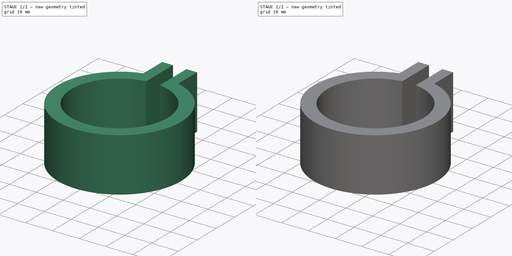
[diagram: build sequence overview — one tinted view per stage of 2, left to right]
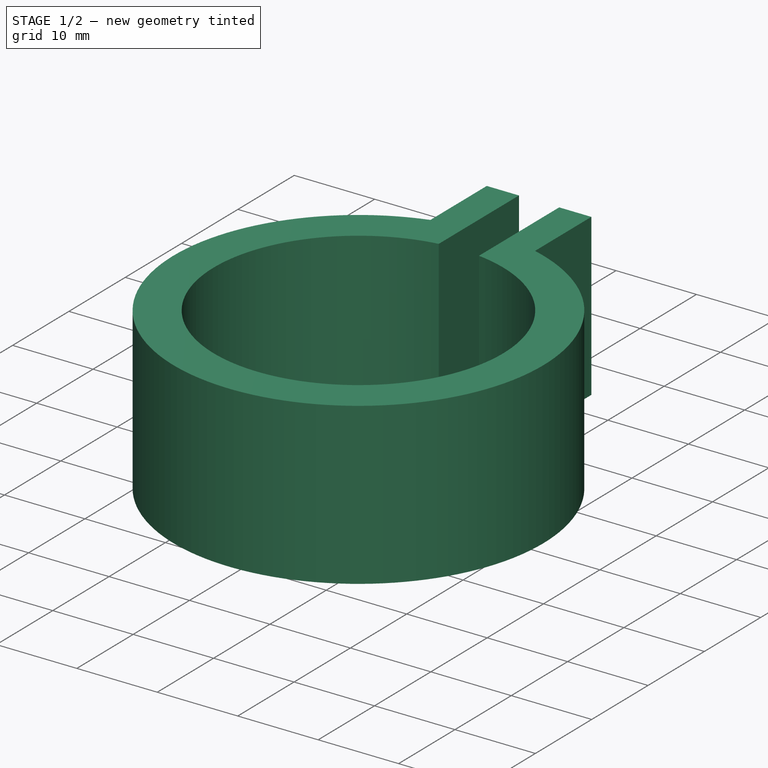
[diagram: stage 1 of 2 — iso view after this stage's code; geometry added in this stage tinted green]
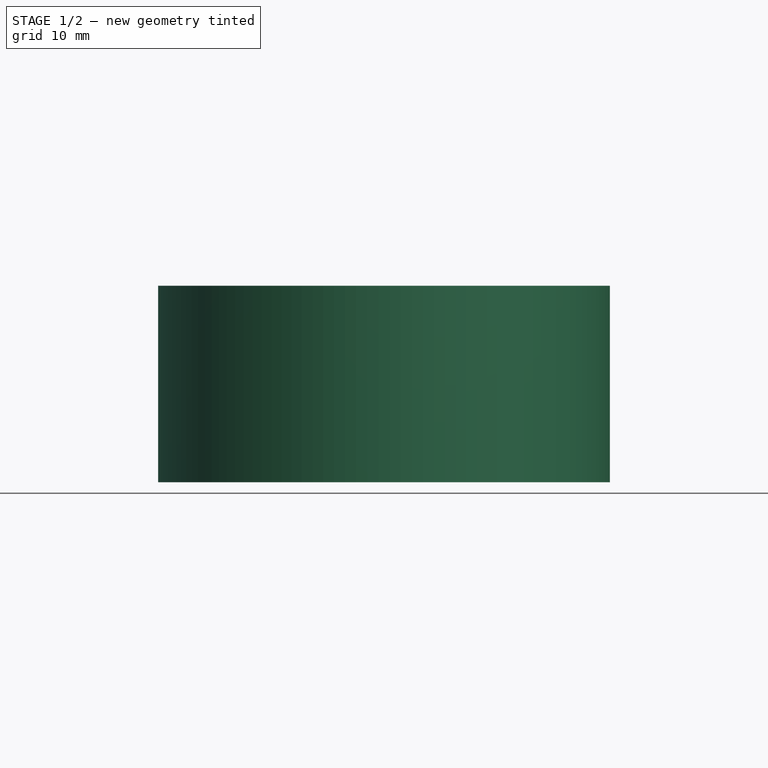
[diagram: stage 1 of 2 — front view after this stage's code; geometry added in this stage tinted green]
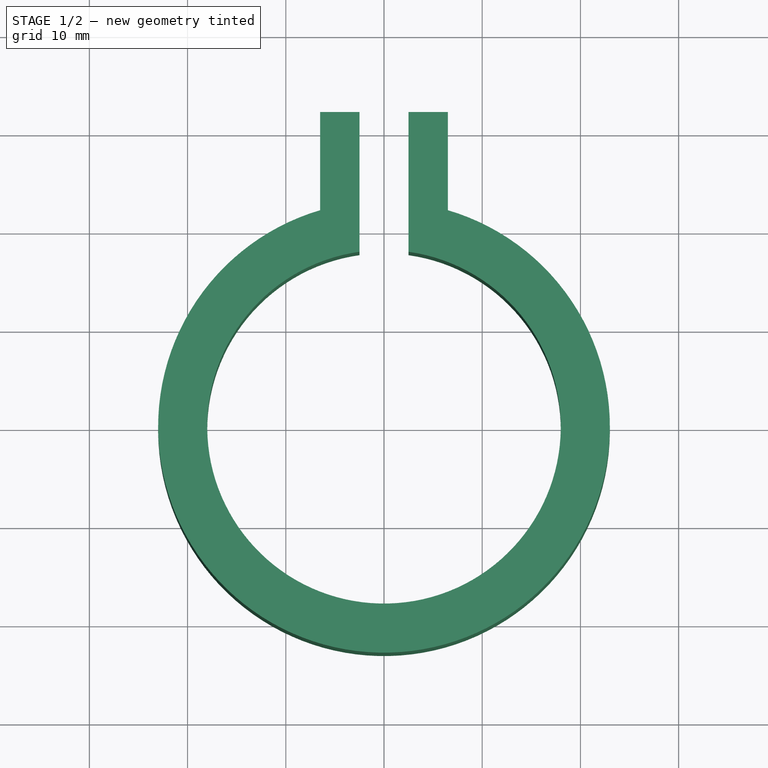
[diagram: stage 1 of 2 — top view after this stage's code; geometry added in this stage tinted green]
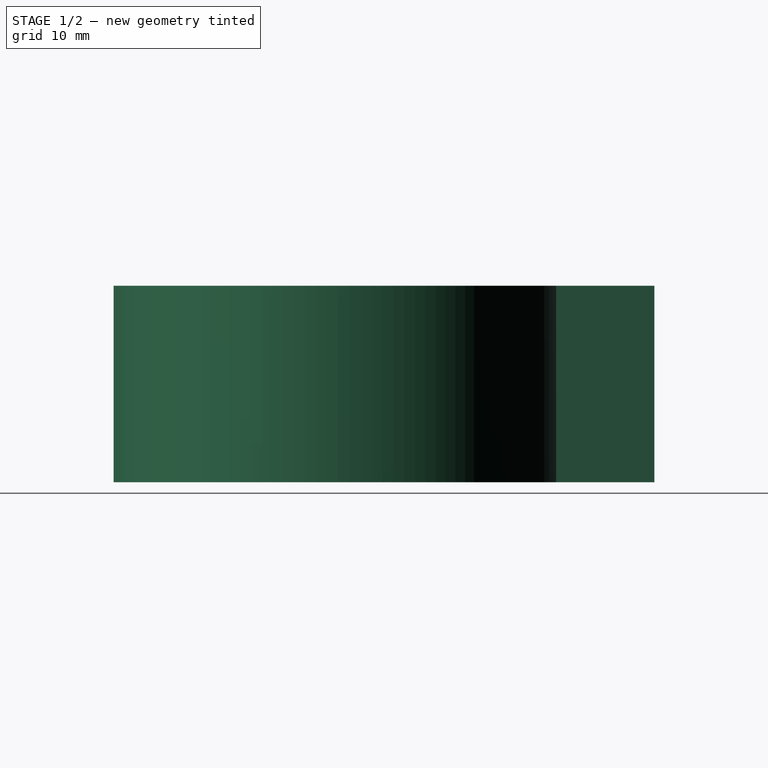
[diagram: stage 1 of 2 — right view after this stage's code; geometry added in this stage tinted green]
FCSTD DOCUMENT  (FreeCAD 0.16R6712 (Git))
Label: Presilha Sensor capacitivo
License: All rights reserved
LicenseURL: http://en.wikipedia.org/wiki/All_rights_reserved
objects: Sketcher::SketchObject×2, PartDesign::Pad×1, PartDesign::Pocket×1
note: 6 computed .brp shape members not serialized (recipe doc carries the construction recipe); baked Part::Feature solids carry a one-line shape summary decoded from their .brp

FEATURE [Sketcher::SketchObject] Sketch
  sketch-geometry (8):
    g0: ArcOfCircle CenterX=0 CenterY=0 CenterZ=0 NormalX=0 NormalY=0 NormalZ=1 Radius=18 StartAngle=1.71014 EndAngle=7.71464
    g1: ArcOfCircle CenterX=0 CenterY=0 CenterZ=0 NormalX=0 NormalY=0 NormalZ=1 Radius=23 StartAngle=1.85731 EndAngle=7.56747
    g2: LineSegment StartX=-6.5 StartY=22.0624 StartZ=0 EndX=-6.5 EndY=32.0624 EndZ=0
    g3: LineSegment StartX=-6.5 StartY=32.0624 StartZ=0 EndX=-2.5 EndY=32.0624 EndZ=0
    g4: LineSegment StartX=-2.5 StartY=32.0624 StartZ=0 EndX=-2.5 EndY=17.8255 EndZ=0
    g5: LineSegment StartX=6.5 StartY=22.0624 StartZ=0 EndX=6.5 EndY=32.0624 EndZ=0
    g6: LineSegment StartX=6.5 StartY=32.0624 StartZ=0 EndX=2.5 EndY=32.0624 EndZ=0
    g7: LineSegment StartX=2.5 StartY=32.0624 StartZ=0 EndX=2.5 EndY=17.8255 EndZ=0
  constraints (23):
    c: Coincident(g-1,g0)
    c: Radius(g0) = 18
    c: Coincident(g0,g1)
    c: Coincident(g2,g3)
    c: Coincident(g3,g4)
    c: Horizontal(g3)
    c: Vertical(g2)
    c: Vertical(g4)
    c: Coincident(g5,g6)
    c: Coincident(g6,g7)
    c: Horizontal(g6)
    c: Vertical(g5)
    c: Vertical(g7)
    c: Equal(g3,g6)
    c: Symmetric(g3,g6,g-2)
    c: Radius(g1) = 23
    c: DistanceX(g0,g0) = 5
    c: DistanceX(g6,g6) = 4
    c: Coincident(g2,g1)
    c: Coincident(g5,g1)
    c: DistanceY(g5,g5) = 10
    c: Coincident(g0,g4)
    c: Coincident(g0,g7)
FEATURE [PartDesign::Pad] Pad
  Length = 20
  Length2 = 100
  Sketch = -> Sketch
  Type = 0
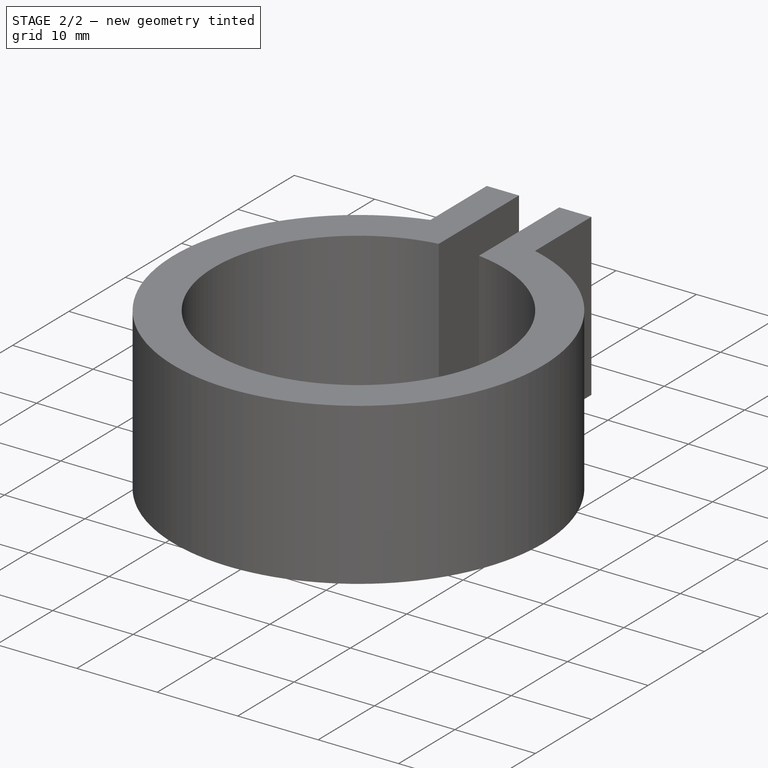
[diagram: stage 2 of 2 — iso view after this stage's code; geometry added in this stage tinted green]
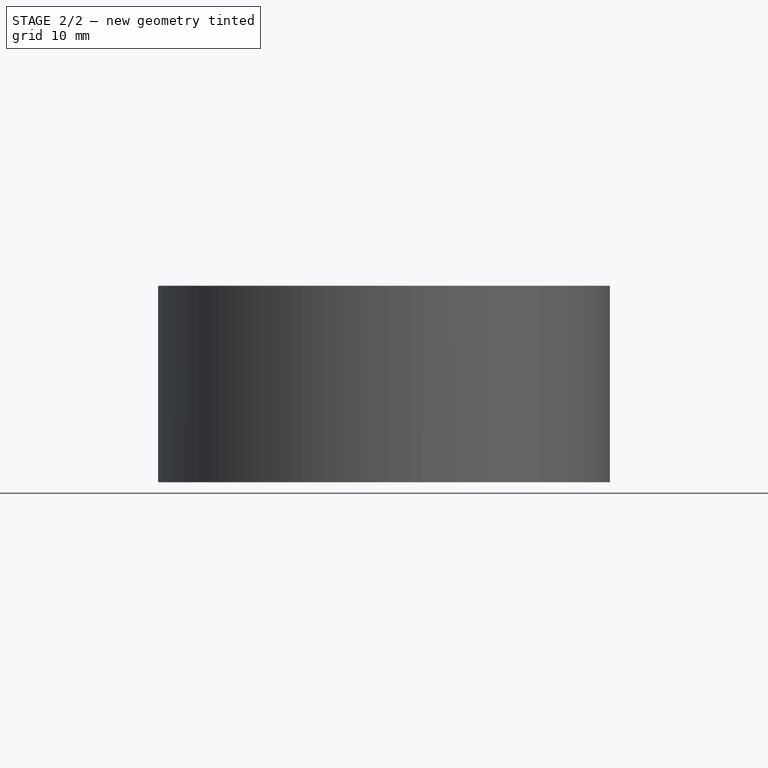
[diagram: stage 2 of 2 — front view after this stage's code; geometry added in this stage tinted green]
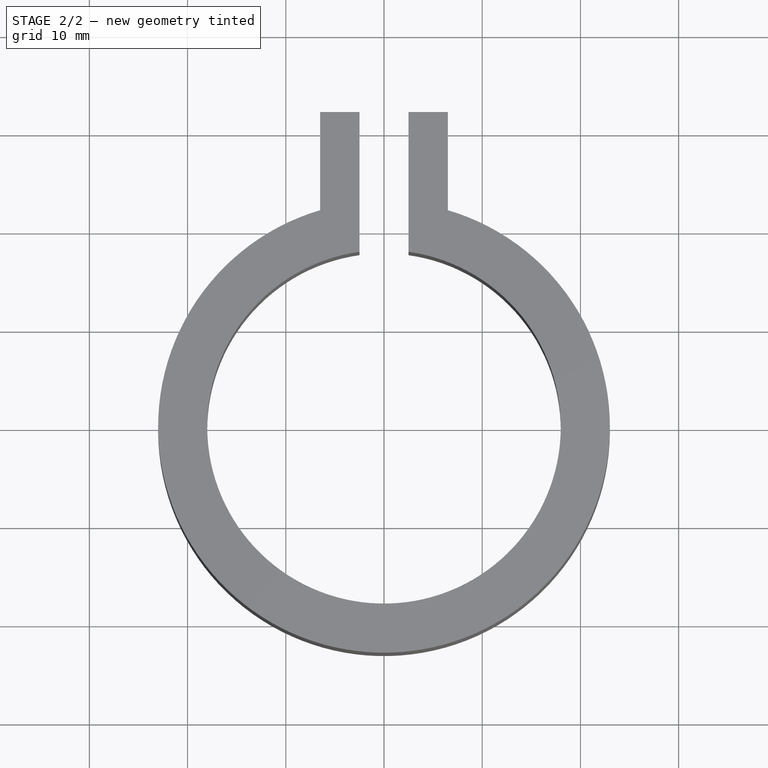
[diagram: stage 2 of 2 — top view after this stage's code; geometry added in this stage tinted green]
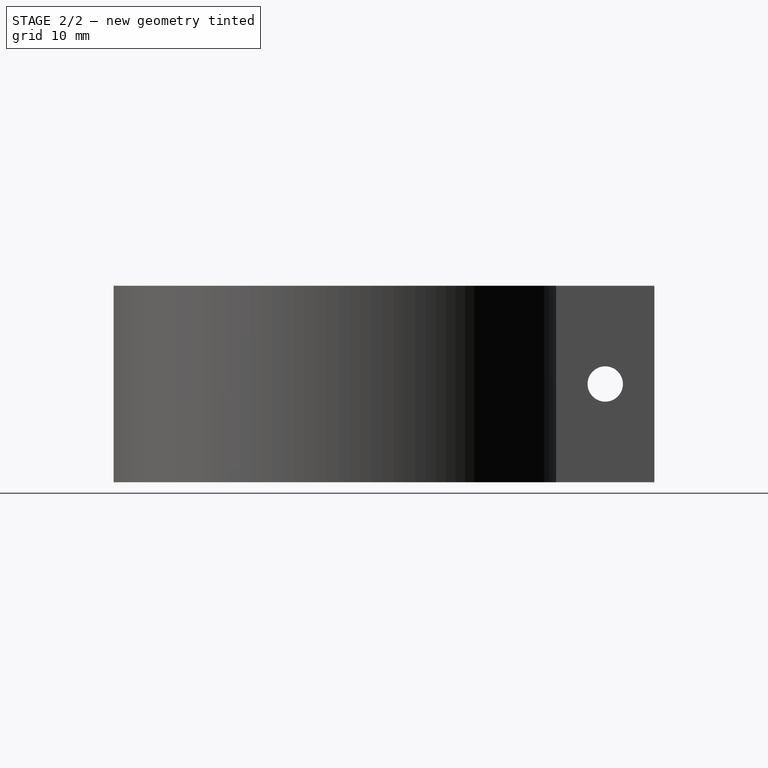
[diagram: stage 2 of 2 — right view after this stage's code; geometry added in this stage tinted green]
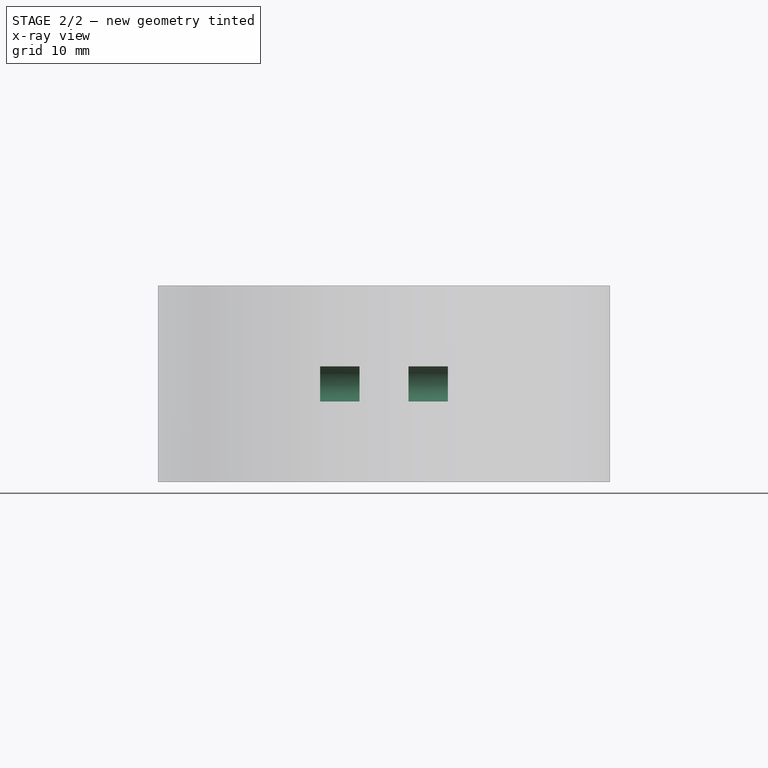
[diagram: stage 2 of 2 — x-ray composite at the front view; earlier geometry ghosted, this stage's added geometry solid]
FEATURE [Sketcher::SketchObject] Sketch001
  ExternalGeometry = -> [Pad]
  Placement = pos=(6.5,0,0) rot=(0.57735,0.57735,0.57735;2.0944rad)
  Support = -> Pad [Face7]
  sketch-geometry (1):
    g0: Circle CenterX=27.0624 CenterY=10 CenterZ=0 NormalX=0 NormalY=0 NormalZ=1 Radius=1.8
  constraints (2):
    c: Radius(g0) = 1.8
    c: Symmetric(g-3,g-4,g0)
FEATURE [PartDesign::Pocket] Pocket
  Length = 5
  Sketch = -> Sketch001
  Type = 1
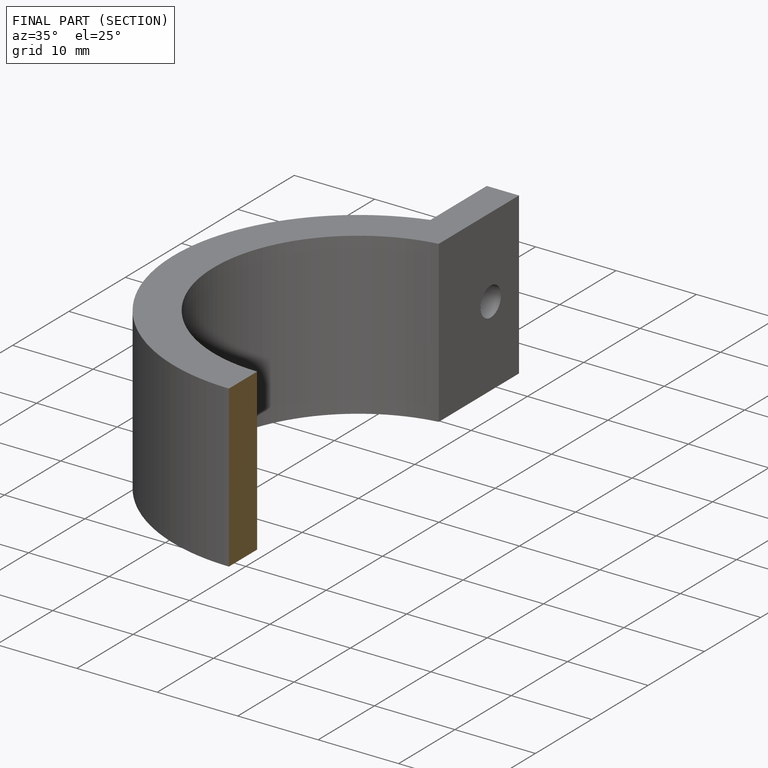
[diagram: finished part — half-section view (interior)]
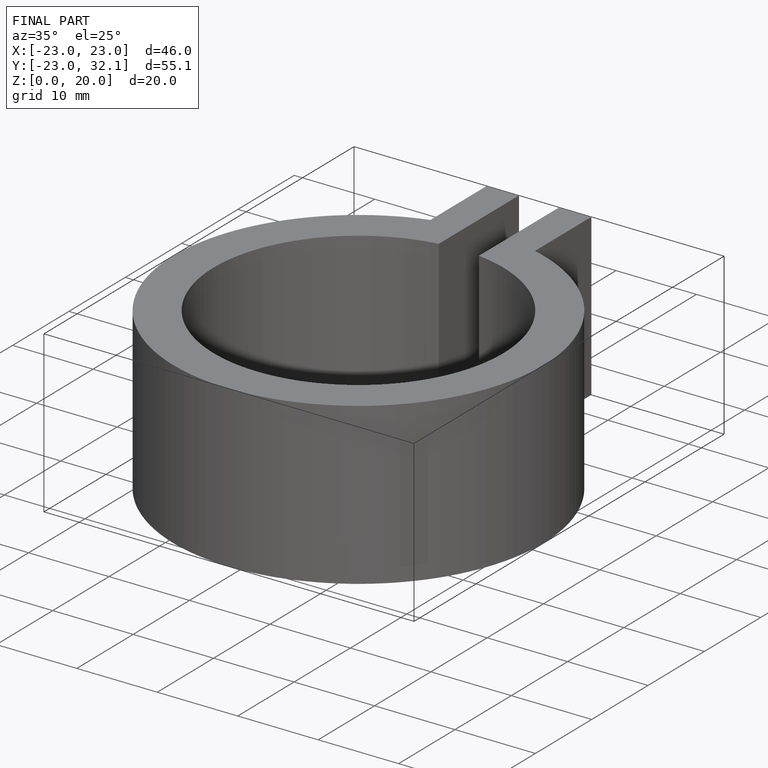
[diagram: finished part — iso view with bounding-box wireframe]
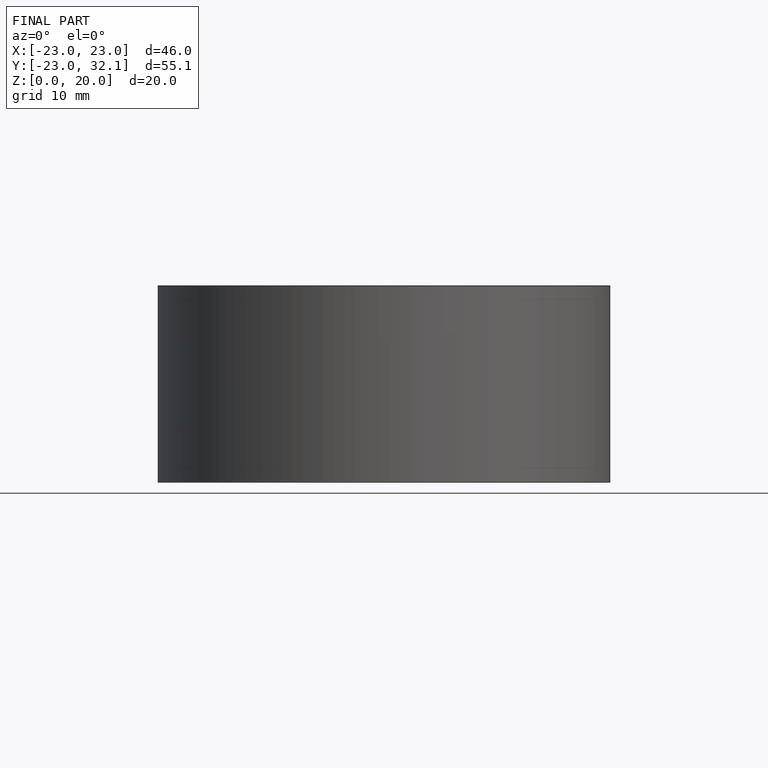
[diagram: finished part — front view with bounding-box wireframe]
